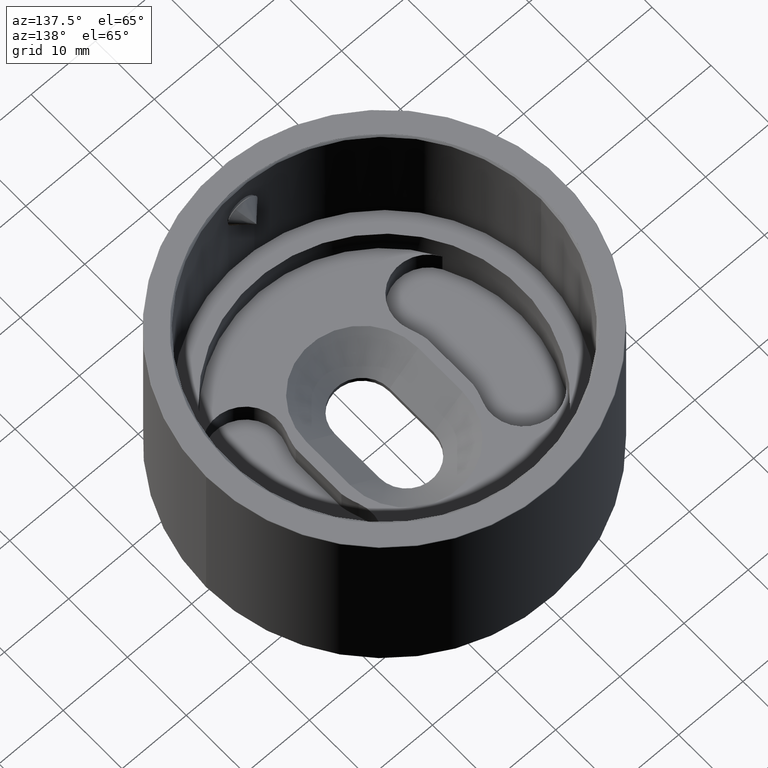
[diagram: clean part render]
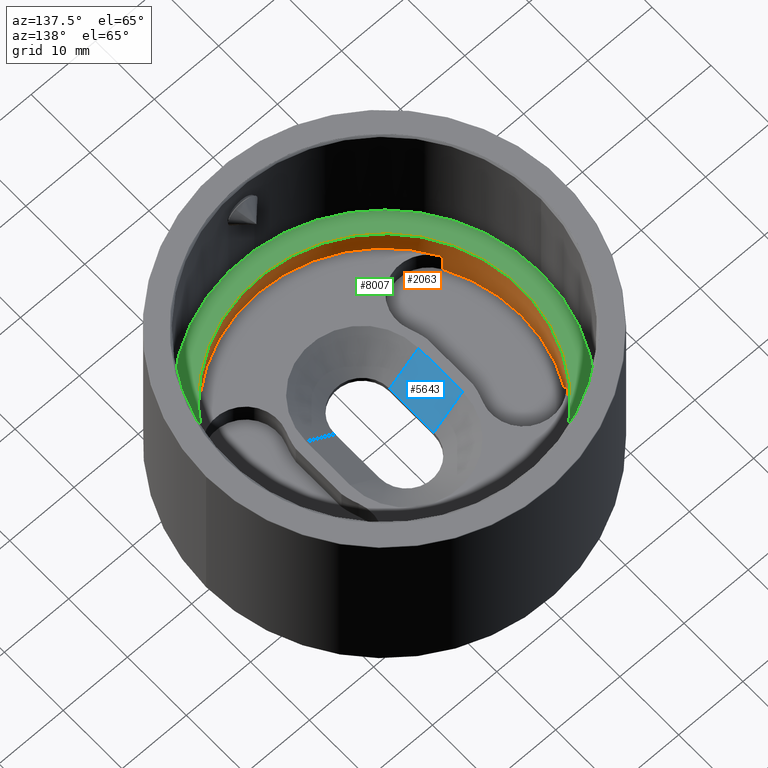
[diagram: same view with three faces highlighted in distinct colors, each labeled with its STEP entity id]
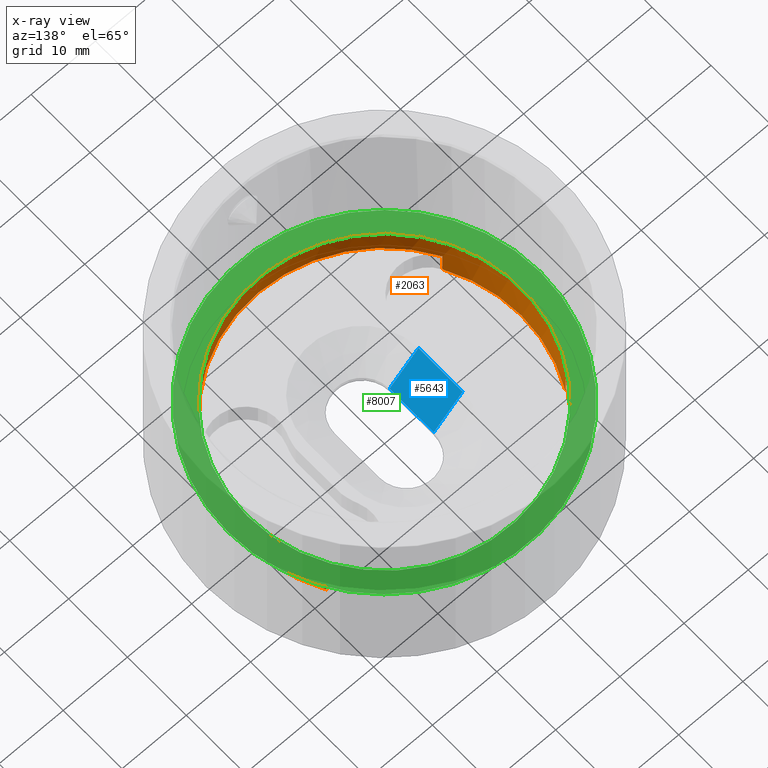
[diagram: x-ray of the same camera — body ghosted, the three highlighted faces saturated]
A machine part, auxiliary view with three faces highlighted in distinct colors.
The next image is the same camera in x-ray (body ghosted, the three faces saturated) — at least one of them is partly hidden behind the body in this view.
Their STEP definitions:

[orange] entity #2063 — the highlighted cylindrical surface (bore or boss wall) has radius 21.35 mm, axis along (0, 0, 1).
#152 = AXIS2_PLACEMENT_3D ( 'NONE', #5655, #8236, #10862 ) ;
#216 = CARTESIAN_POINT ( 'NONE',  ( 0.000000000000000000, 0.000000000000000000, 2.600000000000000533 ) ) ;
#822 = ORIENTED_EDGE ( 'NONE', *, *, #7593, .T. ) ;
#936 = VECTOR ( 'NONE', #1234, 1000.000000000000000 ) ;
#1006 = CARTESIAN_POINT ( 'NONE',  ( 18.61970701061196110, 10.44648318042813351, 2.600000000000000533 ) ) ;
#1186 = CIRCLE ( 'NONE', #3305, 21.35000000000000497 ) ;
#1234 = DIRECTION ( 'NONE',  ( -0.000000000000000000, -0.000000000000000000, 1.000000000000000000 ) ) ;
#1289 = CARTESIAN_POINT ( 'NONE',  ( 0.000000000000000000, 0.000000000000000000, 10.00000000000000000 ) ) ;
#1328 = AXIS2_PLACEMENT_3D ( 'NONE', #16226, #7373, #3495 ) ;
#1338 = DIRECTION ( 'NONE',  ( 1.000000000000000000, 0.000000000000000000, 0.000000000000000000 ) ) ;
#1418 = FACE_OUTER_BOUND ( 'NONE', #9010, .T. ) ;
#1484 = DIRECTION ( 'NONE',  ( -0.000000000000000000, -0.000000000000000000, 1.000000000000000000 ) ) ;
#1520 = DIRECTION ( 'NONE',  ( -0.000000000000000000, 0.000000000000000000, 1.000000000000000000 ) ) ;
#1610 = VERTEX_POINT ( 'NONE', #5805 ) ;
#1734 = DIRECTION ( 'NONE',  ( 1.000000000000000000, 0.000000000000000000, 0.000000000000000000 ) ) ;
#1903 = DIRECTION ( 'NONE',  ( -0.000000000000000000, -0.000000000000000000, 1.000000000000000000 ) ) ;
#1967 = LINE ( 'NONE', #1006, #2760 ) ;
#2062 = AXIS2_PLACEMENT_3D ( 'NONE', #12030, #13216, #1734 ) ;
#2063 = ADVANCED_FACE ( 'NONE', ( #1418, #3598 ), #7211, .F. ) ;
#2508 = CARTESIAN_POINT ( 'NONE',  ( 18.61970701061196110, -10.44648318042813351, 2.600000000000000533 ) ) ;
#2559 = CIRCLE ( 'NONE', #12193, 21.35000000000000497 ) ;
#2760 = VECTOR ( 'NONE', #11286, 1000.000000000000000 ) ;
#3024 = CIRCLE ( 'NONE', #2062, 21.35000000000000497 ) ;
#3057 = LINE ( 'NONE', #14359, #6060 ) ;
#3130 = VERTEX_POINT ( 'NONE', #6851 ) ;
#3305 = AXIS2_PLACEMENT_3D ( 'NONE', #216, #1520, #15732 ) ;
#3456 = VERTEX_POINT ( 'NONE', #15625 ) ;
#3495 = DIRECTION ( 'NONE',  ( 1.000000000000000000, 0.000000000000000000, 0.000000000000000000 ) ) ;
#3513 = CARTESIAN_POINT ( 'NONE',  ( 18.61970701061196110, 10.44648318042813351, 2.600000000000000533 ) ) ;
#3598 = FACE_OUTER_BOUND ( 'NONE', #7019, .T. ) ;
#3631 = VECTOR ( 'NONE', #1903, 1000.000000000000000 ) ;
#4098 = VERTEX_POINT ( 'NONE', #3513 ) ;
#4121 = EDGE_CURVE ( 'NONE', #12226, #16135, #2559, .T. ) ;
#4362 = CARTESIAN_POINT ( 'NONE',  ( -18.61970701061196820, -10.44648318042812463, 6.100000000000000533 ) ) ;
#4977 = VERTEX_POINT ( 'NONE', #7518 ) ;
#5655 = CARTESIAN_POINT ( 'NONE',  ( 0.000000000000000000, 0.000000000000000000, 6.100000000000000533 ) ) ;
#5779 = ORIENTED_EDGE ( 'NONE', *, *, #4121, .F. ) ;
#5805 = CARTESIAN_POINT ( 'NONE',  ( -18.61970701061196820, -10.44648318042812463, 2.600000000000000533 ) ) ;
#6060 = VECTOR ( 'NONE', #1484, 1000.000000000000000 ) ;
#6543 = CARTESIAN_POINT ( 'NONE',  ( 18.61970701061196110, 10.44648318042813351, 6.100000000000000533 ) ) ;
#6851 = CARTESIAN_POINT ( 'NONE',  ( 18.61970701061196110, -10.44648318042813351, 2.600000000000000533 ) ) ;
#6859 = LINE ( 'NONE', #8319, #3631 ) ;
#6991 = CIRCLE ( 'NONE', #12778, 21.35000000000000497 ) ;
#7019 = EDGE_LOOP ( 'NONE', ( #822 ) ) ;
#7211 = CYLINDRICAL_SURFACE ( 'NONE', #152, 21.35000000000000497 ) ;
#7246 = EDGE_CURVE ( 'NONE', #3130, #4098, #1186, .T. ) ;
#7373 = DIRECTION ( 'NONE',  ( 0.000000000000000000, 0.000000000000000000, 1.000000000000000000 ) ) ;
#7475 = EDGE_CURVE ( 'NONE', #4098, #10831, #1967, .T. ) ;
#7507 = CIRCLE ( 'NONE', #1328, 21.35000000000000497 ) ;
#7518 = CARTESIAN_POINT ( 'NONE',  ( -18.61970701061196110, 10.44648318042813351, 6.100000000000000533 ) ) ;
#7593 = EDGE_CURVE ( 'NONE', #3456, #3456, #6991, .T. ) ;
#7740 = LINE ( 'NONE', #2508, #936 ) ;
#7933 = ORIENTED_EDGE ( 'NONE', *, *, #7246, .F. ) ;
#8057 = ORIENTED_EDGE ( 'NONE', *, *, #14161, .F. ) ;
#8236 = DIRECTION ( 'NONE',  ( -0.000000000000000000, -0.000000000000000000, 1.000000000000000000 ) ) ;
#8319 = CARTESIAN_POINT ( 'NONE',  ( -18.61970701061196820, -10.44648318042812463, 2.600000000000000533 ) ) ;
#8664 = DIRECTION ( 'NONE',  ( 1.000000000000000000, 0.000000000000000000, 0.000000000000000000 ) ) ;
#8879 = CARTESIAN_POINT ( 'NONE',  ( 0.000000000000000000, 0.000000000000000000, 6.100000000000000533 ) ) ;
#8987 = ORIENTED_EDGE ( 'NONE', *, *, #7475, .F. ) ;
#9010 = EDGE_LOOP ( 'NONE', ( #5779, #8057, #10089, #11784, #13271, #8987, #7933, #10052 ) ) ;
#9534 = EDGE_CURVE ( 'NONE', #3130, #16135, #7740, .T. ) ;
#10052 = ORIENTED_EDGE ( 'NONE', *, *, #9534, .T. ) ;
#10089 = ORIENTED_EDGE ( 'NONE', *, *, #14146, .F. ) ;
#10831 = VERTEX_POINT ( 'NONE', #6543 ) ;
#10862 = DIRECTION ( 'NONE',  ( 1.000000000000000000, 0.000000000000000000, 0.000000000000000000 ) ) ;
#11286 = DIRECTION ( 'NONE',  ( -0.000000000000000000, -0.000000000000000000, 1.000000000000000000 ) ) ;
#11562 = DIRECTION ( 'NONE',  ( 0.000000000000000000, 0.000000000000000000, 1.000000000000000000 ) ) ;
#11619 = VERTEX_POINT ( 'NONE', #12549 ) ;
#11784 = ORIENTED_EDGE ( 'NONE', *, *, #15323, .T. ) ;
#11952 = EDGE_CURVE ( 'NONE', #10831, #4977, #7507, .T. ) ;
#12030 = CARTESIAN_POINT ( 'NONE',  ( 0.000000000000000000, 0.000000000000000000, 2.600000000000000533 ) ) ;
#12193 = AXIS2_PLACEMENT_3D ( 'NONE', #8879, #16351, #8664 ) ;
#12226 = VERTEX_POINT ( 'NONE', #4362 ) ;
#12549 = CARTESIAN_POINT ( 'NONE',  ( -18.61970701061196110, 10.44648318042813351, 2.600000000000000533 ) ) ;
#12778 = AXIS2_PLACEMENT_3D ( 'NONE', #1289, #11562, #1338 ) ;
#13216 = DIRECTION ( 'NONE',  ( -0.000000000000000000, 0.000000000000000000, 1.000000000000000000 ) ) ;
#13271 = ORIENTED_EDGE ( 'NONE', *, *, #11952, .F. ) ;
#14146 = EDGE_CURVE ( 'NONE', #11619, #1610, #3024, .T. ) ;
#14161 = EDGE_CURVE ( 'NONE', #1610, #12226, #6859, .T. ) ;
#14359 = CARTESIAN_POINT ( 'NONE',  ( -18.61970701061196110, 10.44648318042813351, 2.600000000000000533 ) ) ;
#15323 = EDGE_CURVE ( 'NONE', #11619, #4977, #3057, .T. ) ;
#15329 = CARTESIAN_POINT ( 'NONE',  ( 18.61970701061196110, -10.44648318042813351, 6.100000000000000533 ) ) ;
#15625 = CARTESIAN_POINT ( 'NONE',  ( 21.35000000000000497, 0.000000000000000000, 10.00000000000000000 ) ) ;
#15732 = DIRECTION ( 'NONE',  ( 1.000000000000000000, 0.000000000000000000, 0.000000000000000000 ) ) ;
#16135 = VERTEX_POINT ( 'NONE', #15329 ) ;
#16226 = CARTESIAN_POINT ( 'NONE',  ( 0.000000000000000000, 0.000000000000000000, 6.100000000000000533 ) ) ;
#16351 = DIRECTION ( 'NONE',  ( 0.000000000000000000, 0.000000000000000000, 1.000000000000000000 ) ) ;

[blue] entity #5643 — the highlighted planar face has unit normal (-0.7071, -0, -0.7071).
#885 = CARTESIAN_POINT ( 'NONE',  ( -4.249999999999985789, -3.750000000000014655, 1.600000000000001643 ) ) ;
#974 = VECTOR ( 'NONE', #3219, 1000.000000000000000 ) ;
#1141 = CARTESIAN_POINT ( 'NONE',  ( -8.750000000000014211, 3.749999999999969358, 6.100000000000000533 ) ) ;
#1273 = DIRECTION ( 'NONE',  ( -0.7071067811865479058, 0.000000000000000000, 0.7071067811865472397 ) ) ;
#1427 = ORIENTED_EDGE ( 'NONE', *, *, #4899, .F. ) ;
#1498 = AXIS2_PLACEMENT_3D ( 'NONE', #11492, #2542, #1273 ) ;
#2542 = DIRECTION ( 'NONE',  ( -0.7071067811865472397, -2.468850131082264949E-15, -0.7071067811865479058 ) ) ;
#3164 = EDGE_LOOP ( 'NONE', ( #11627, #1427, #6112, #12769 ) ) ;
#3219 = DIRECTION ( 'NONE',  ( -3.491481338843133355E-15, 1.000000000000000000, -0.000000000000000000 ) ) ;
#3325 = DIRECTION ( 'NONE',  ( -0.7071067811865479058, -2.468691373398919659E-15, 0.7071067811865472397 ) ) ;
#3998 = DIRECTION ( 'NONE',  ( 0.7071067811865479058, 2.468691373398919659E-15, -0.7071067811865472397 ) ) ;
#4199 = CARTESIAN_POINT ( 'NONE',  ( -8.749999999999994671, -3.750000000000030198, 6.099999999999999645 ) ) ;
#4723 = VECTOR ( 'NONE', #15023, 1000.000000000000000 ) ;
#4746 = LINE ( 'NONE', #5796, #974 ) ;
#4899 = EDGE_CURVE ( 'NONE', #12290, #9093, #11556, .T. ) ;
#5140 = CARTESIAN_POINT ( 'NONE',  ( 1.309305502066175008E-14, -3.750000000000000000, -2.649999999999993694 ) ) ;
#5643 = ADVANCED_FACE ( 'NONE', ( #10799 ), #7641, .F. ) ;
#5796 = CARTESIAN_POINT ( 'NONE',  ( -4.249999999999985789, -3.750000000000014655, 1.600000000000001643 ) ) ;
#5847 = CARTESIAN_POINT ( 'NONE',  ( -1.309305502066175008E-14, 3.750000000000000000, -2.649999999999993694 ) ) ;
#6112 = ORIENTED_EDGE ( 'NONE', *, *, #11742, .T. ) ;
#6692 = LINE ( 'NONE', #5847, #16529 ) ;
#7105 = VECTOR ( 'NONE', #3998, 999.9999999999998863 ) ;
#7296 = CARTESIAN_POINT ( 'NONE',  ( -8.749999999999989342, -3.750000000000030198, 6.100000000000000533 ) ) ;
#7431 = VERTEX_POINT ( 'NONE', #885 ) ;
#7641 = PLANE ( 'NONE',  #1498 ) ;
#7712 = LINE ( 'NONE', #5140, #7105 ) ;
#8320 = EDGE_CURVE ( 'NONE', #7431, #15411, #4746, .T. ) ;
#9093 = VERTEX_POINT ( 'NONE', #1141 ) ;
#9486 = CARTESIAN_POINT ( 'NONE',  ( -4.250000000000011546, 3.749999999999984901, 1.600000000000001643 ) ) ;
#10799 = FACE_OUTER_BOUND ( 'NONE', #3164, .T. ) ;
#11492 = CARTESIAN_POINT ( 'NONE',  ( 1.309305502066175008E-14, -3.750000000000000000, -2.649999999999993694 ) ) ;
#11556 = LINE ( 'NONE', #7296, #4723 ) ;
#11627 = ORIENTED_EDGE ( 'NONE', *, *, #11830, .T. ) ;
#11742 = EDGE_CURVE ( 'NONE', #12290, #7431, #7712, .T. ) ;
#11830 = EDGE_CURVE ( 'NONE', #15411, #9093, #6692, .T. ) ;
#12290 = VERTEX_POINT ( 'NONE', #4199 ) ;
#12769 = ORIENTED_EDGE ( 'NONE', *, *, #8320, .T. ) ;
#15023 = DIRECTION ( 'NONE',  ( -3.491481338843133355E-15, 1.000000000000000000, -0.000000000000000000 ) ) ;
#15411 = VERTEX_POINT ( 'NONE', #9486 ) ;
#16529 = VECTOR ( 'NONE', #3325, 999.9999999999998863 ) ;

[green] entity #8007 — the highlighted planar face has unit normal (0, 0, 1).
#851 = PLANE ( 'NONE',  #3851 ) ;
#1289 = CARTESIAN_POINT ( 'NONE',  ( 0.000000000000000000, 0.000000000000000000, 10.00000000000000000 ) ) ;
#1338 = DIRECTION ( 'NONE',  ( 1.000000000000000000, 0.000000000000000000, 0.000000000000000000 ) ) ;
#1756 = FACE_OUTER_BOUND ( 'NONE', #7847, .T. ) ;
#2409 = EDGE_CURVE ( 'NONE', #13292, #13292, #7614, .T. ) ;
#2422 = AXIS2_PLACEMENT_3D ( 'NONE', #4035, #7959, #10513 ) ;
#3403 = DIRECTION ( 'NONE',  ( 1.000000000000000000, 0.000000000000000000, -0.000000000000000000 ) ) ;
#3456 = VERTEX_POINT ( 'NONE', #15625 ) ;
#3851 = AXIS2_PLACEMENT_3D ( 'NONE', #11077, #14787, #3403 ) ;
#4035 = CARTESIAN_POINT ( 'NONE',  ( 0.000000000000000000, 0.000000000000000000, 10.00000000000000000 ) ) ;
#6991 = CIRCLE ( 'NONE', #12778, 21.35000000000000497 ) ;
#7593 = EDGE_CURVE ( 'NONE', #3456, #3456, #6991, .T. ) ;
#7614 = CIRCLE ( 'NONE', #2422, 24.35000000000000497 ) ;
#7847 = EDGE_LOOP ( 'NONE', ( #8113 ) ) ;
#7959 = DIRECTION ( 'NONE',  ( 0.000000000000000000, 0.000000000000000000, 1.000000000000000000 ) ) ;
#8007 = ADVANCED_FACE ( 'NONE', ( #8559, #1756 ), #851, .T. ) ;
#8113 = ORIENTED_EDGE ( 'NONE', *, *, #2409, .T. ) ;
#8264 = ORIENTED_EDGE ( 'NONE', *, *, #7593, .F. ) ;
#8559 = FACE_BOUND ( 'NONE', #11387, .T. ) ;
#9141 = CARTESIAN_POINT ( 'NONE',  ( 24.35000000000000497, 0.000000000000000000, 10.00000000000000000 ) ) ;
#10513 = DIRECTION ( 'NONE',  ( 1.000000000000000000, 0.000000000000000000, 0.000000000000000000 ) ) ;
#11077 = CARTESIAN_POINT ( 'NONE',  ( 0.000000000000000000, 0.000000000000000000, 10.00000000000000000 ) ) ;
#11387 = EDGE_LOOP ( 'NONE', ( #8264 ) ) ;
#11562 = DIRECTION ( 'NONE',  ( 0.000000000000000000, 0.000000000000000000, 1.000000000000000000 ) ) ;
#12778 = AXIS2_PLACEMENT_3D ( 'NONE', #1289, #11562, #1338 ) ;
#13292 = VERTEX_POINT ( 'NONE', #9141 ) ;
#14787 = DIRECTION ( 'NONE',  ( 0.000000000000000000, 0.000000000000000000, 1.000000000000000000 ) ) ;
#15625 = CARTESIAN_POINT ( 'NONE',  ( 21.35000000000000497, 0.000000000000000000, 10.00000000000000000 ) ) ;